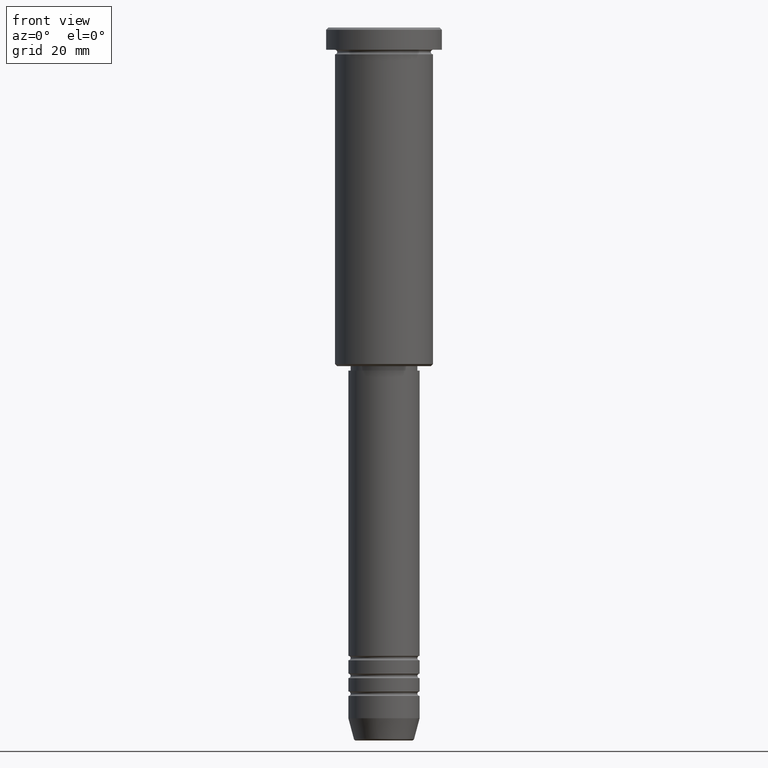
[diagram: clean part render]
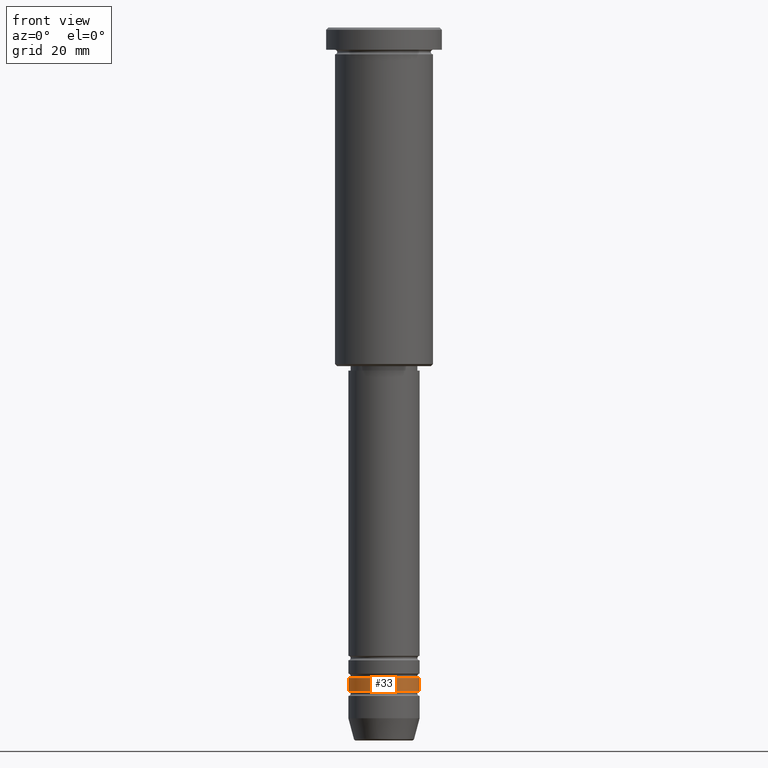
[diagram: same view with one face highlighted and labeled with its STEP entity id]
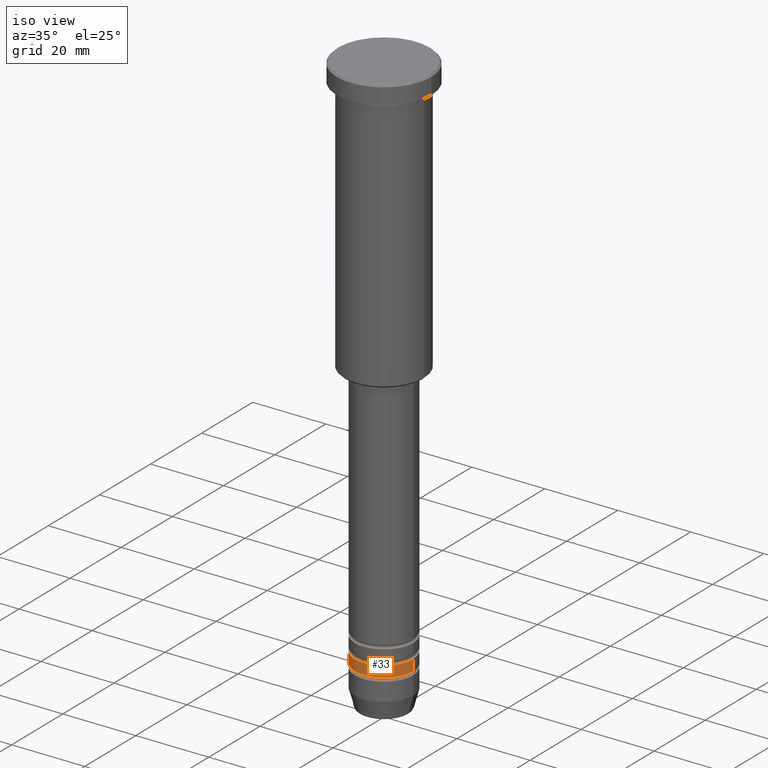
[diagram: same view with one face highlighted and labeled with its STEP entity id]
A machine part, front view. The second image highlights one B-rep face of the part: STEP entity #33.
A second angle (iso view) of the same face is appended — the face is thin or edge-on in the first view.
In plain terms, the highlighted cylindrical surface (edge-blend (fillet) strip) has radius 8 mm, axis along (-0, -0, 1).
Its self-contained STEP definition (entity closure, byte-faithful):
#14 = VERTEX_POINT ( 'NONE', #926 ) ;
#19 = DIRECTION ( 'NONE',  ( 1.000000000000000000, 0.000000000000000000, 0.000000000000000000 ) ) ;
#31 = CARTESIAN_POINT ( 'NONE',  ( 8.000000000000000000, 0.000000000000000000, 0.000000000000000000 ) ) ;
#33 = ADVANCED_FACE ( 'NONE', ( #1029 ), #137, .T. ) ;
#103 = VECTOR ( 'NONE', #814, 1000.000000000000000 ) ;
#116 = LINE ( 'NONE', #31, #409 ) ;
#137 = CYLINDRICAL_SURFACE ( 'NONE', #323, 8.000000000000000000 ) ;
#151 = VERTEX_POINT ( 'NONE', #837 ) ;
#179 = CARTESIAN_POINT ( 'NONE',  ( 0.000000000000000000, 0.000000000000000000, -146.0000000000000000 ) ) ;
#186 = EDGE_CURVE ( 'NONE', #151, #14, #116, .T. ) ;
#214 = CARTESIAN_POINT ( 'NONE',  ( 0.000000000000000000, 0.000000000000000000, 0.000000000000000000 ) ) ;
#265 = CIRCLE ( 'NONE', #559, 8.000000000000000000 ) ;
#308 = DIRECTION ( 'NONE',  ( -0.000000000000000000, -0.000000000000000000, 1.000000000000000000 ) ) ;
#312 = DIRECTION ( 'NONE',  ( -0.000000000000000000, -0.000000000000000000, 1.000000000000000000 ) ) ;
#320 = DIRECTION ( 'NONE',  ( -0.000000000000000000, -0.000000000000000000, 1.000000000000000000 ) ) ;
#323 = AXIS2_PLACEMENT_3D ( 'NONE', #214, #312, #565 ) ;
#351 = DIRECTION ( 'NONE',  ( 1.000000000000000000, 0.000000000000000000, 0.000000000000000000 ) ) ;
#396 = ORIENTED_EDGE ( 'NONE', *, *, #186, .T. ) ;
#409 = VECTOR ( 'NONE', #320, 1000.000000000000000 ) ;
#423 = AXIS2_PLACEMENT_3D ( 'NONE', #921, #308, #19 ) ;
#546 = DIRECTION ( 'NONE',  ( -0.000000000000000000, -0.000000000000000000, 1.000000000000000000 ) ) ;
#559 = AXIS2_PLACEMENT_3D ( 'NONE', #179, #546, #351 ) ;
#565 = DIRECTION ( 'NONE',  ( 1.000000000000000000, 0.000000000000000000, 0.000000000000000000 ) ) ;
#584 = CARTESIAN_POINT ( 'NONE',  ( -8.000000000000000000, 9.797174393178825657E-16, -148.9999999999999716 ) ) ;
#702 = ORIENTED_EDGE ( 'NONE', *, *, #1055, .F. ) ;
#732 = VERTEX_POINT ( 'NONE', #584 ) ;
#751 = CARTESIAN_POINT ( 'NONE',  ( -8.000000000000000000, 9.797174393178825657E-16, -146.0000000000000000 ) ) ;
#799 = ORIENTED_EDGE ( 'NONE', *, *, #1130, .F. ) ;
#805 = EDGE_LOOP ( 'NONE', ( #799, #908, #396, #702 ) ) ;
#814 = DIRECTION ( 'NONE',  ( -0.000000000000000000, -0.000000000000000000, 1.000000000000000000 ) ) ;
#837 = CARTESIAN_POINT ( 'NONE',  ( 8.000000000000000000, 0.000000000000000000, -148.9999999999999716 ) ) ;
#846 = CIRCLE ( 'NONE', #423, 8.000000000000000000 ) ;
#908 = ORIENTED_EDGE ( 'NONE', *, *, #1119, .T. ) ;
#921 = CARTESIAN_POINT ( 'NONE',  ( 0.000000000000000000, 0.000000000000000000, -148.9999999999999716 ) ) ;
#926 = CARTESIAN_POINT ( 'NONE',  ( 8.000000000000000000, 0.000000000000000000, -146.0000000000000000 ) ) ;
#933 = LINE ( 'NONE', #1016, #103 ) ;
#1016 = CARTESIAN_POINT ( 'NONE',  ( -8.000000000000000000, 9.797174393178825657E-16, 0.000000000000000000 ) ) ;
#1029 = FACE_OUTER_BOUND ( 'NONE', #805, .T. ) ;
#1055 = EDGE_CURVE ( 'NONE', #1146, #14, #265, .T. ) ;
#1119 = EDGE_CURVE ( 'NONE', #732, #151, #846, .T. ) ;
#1130 = EDGE_CURVE ( 'NONE', #732, #1146, #933, .T. ) ;
#1146 = VERTEX_POINT ( 'NONE', #751 ) ;